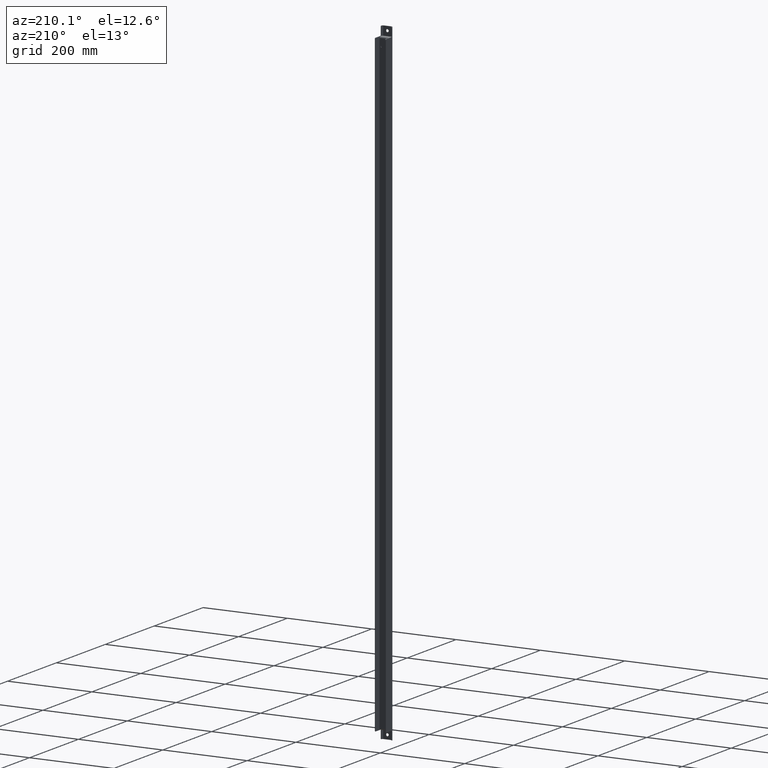
[diagram: clean part render]
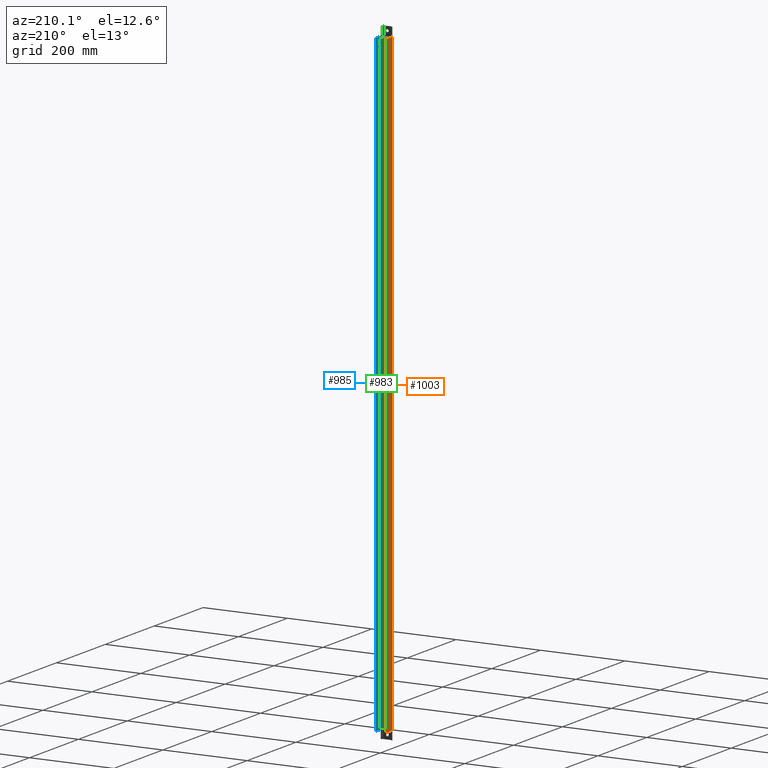
[diagram: same view with three faces highlighted in distinct colors, each labeled with its STEP entity id]
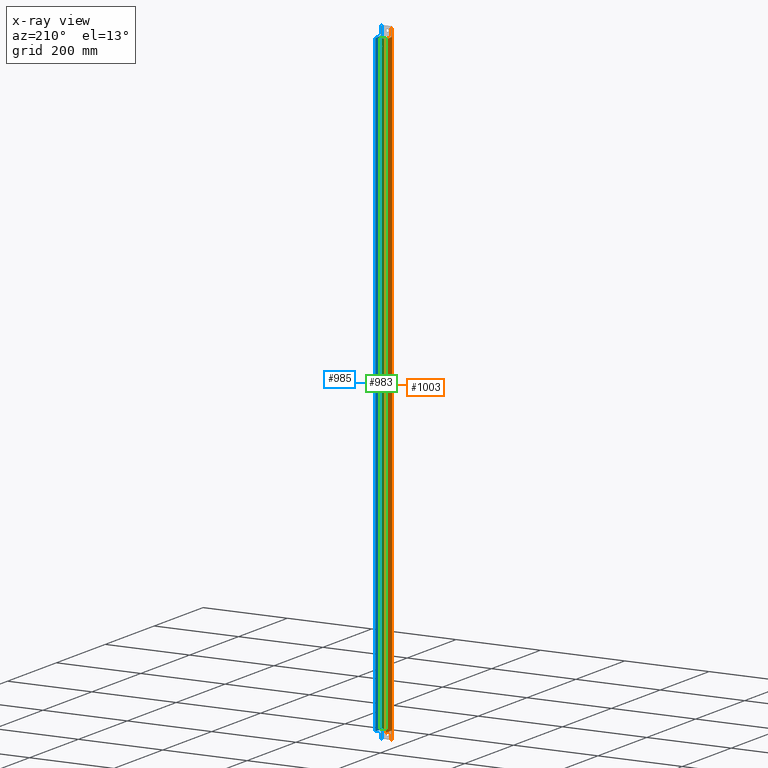
[diagram: x-ray of the same camera — body ghosted, the three highlighted faces saturated]
A machine part, auxiliary view with three faces highlighted in distinct colors.
The next image is the same camera in x-ray (body ghosted, the three faces saturated) — at least one of them is partly hidden behind the body in this view.
Their STEP definitions:

[orange] entity #1003 — the highlighted planar face has unit normal (-1, -0, 0).
#72=LINE('',#1669,#160);
#77=LINE('',#1681,#165);
#78=LINE('',#1683,#166);
#79=LINE('',#1687,#167);
#80=LINE('',#1691,#168);
#81=LINE('',#1695,#169);
#160=VECTOR('',#1350,1000.);
#165=VECTOR('',#1365,1000.);
#166=VECTOR('',#1366,1000.);
#167=VECTOR('',#1369,1000.);
#168=VECTOR('',#1372,1000.);
#169=VECTOR('',#1375,1000.);
#380=ORIENTED_EDGE('',*,*,#613,.F.);
#381=ORIENTED_EDGE('',*,*,#611,.T.);
#382=ORIENTED_EDGE('',*,*,#606,.T.);
#383=ORIENTED_EDGE('',*,*,#608,.T.);
#384=ORIENTED_EDGE('',*,*,#614,.F.);
#385=ORIENTED_EDGE('',*,*,#615,.T.);
#386=ORIENTED_EDGE('',*,*,#616,.F.);
#387=ORIENTED_EDGE('',*,*,#617,.T.);
#388=ORIENTED_EDGE('',*,*,#618,.F.);
#389=ORIENTED_EDGE('',*,*,#619,.T.);
#390=ORIENTED_EDGE('',*,*,#620,.F.);
#391=ORIENTED_EDGE('',*,*,#621,.T.);
#606=EDGE_CURVE('',#728,#729,#72,.F.);
#608=EDGE_CURVE('',#729,#730,#794,.T.);
#611=EDGE_CURVE('',#731,#728,#795,.T.);
#613=EDGE_CURVE('',#731,#732,#77,.T.);
#614=EDGE_CURVE('',#733,#730,#78,.T.);
#615=EDGE_CURVE('',#733,#734,#796,.T.);
#616=EDGE_CURVE('',#735,#734,#79,.T.);
#617=EDGE_CURVE('',#735,#736,#797,.T.);
#618=EDGE_CURVE('',#737,#736,#80,.T.);
#619=EDGE_CURVE('',#737,#738,#798,.T.);
#620=EDGE_CURVE('',#739,#738,#81,.T.);
#621=EDGE_CURVE('',#739,#732,#799,.T.);
#728=VERTEX_POINT('',#1666);
#729=VERTEX_POINT('',#1668);
#730=VERTEX_POINT('',#1672);
#731=VERTEX_POINT('',#1678);
#732=VERTEX_POINT('',#1682);
#733=VERTEX_POINT('',#1684);
#734=VERTEX_POINT('',#1686);
#735=VERTEX_POINT('',#1688);
#736=VERTEX_POINT('',#1690);
#737=VERTEX_POINT('',#1692);
#738=VERTEX_POINT('',#1694);
#739=VERTEX_POINT('',#1696);
#794=CIRCLE('',#1114,2.);
#795=CIRCLE('',#1116,2.);
#796=CIRCLE('',#1118,2.);
#797=CIRCLE('',#1119,2.);
#798=CIRCLE('',#1120,2.);
#799=CIRCLE('',#1121,2.);
#849=EDGE_LOOP('',(#380,#381,#382,#383,#384,#385,#386,#387,#388,#389,#390,
#391));
#917=FACE_BOUND('',#849,.T.);
#959=PLANE('',#1117);
#1003=ADVANCED_FACE('',(#917),#959,.T.);
#1114=AXIS2_PLACEMENT_3D('',#1673,#1354,#1355);
#1116=AXIS2_PLACEMENT_3D('',#1677,#1360,#1361);
#1117=AXIS2_PLACEMENT_3D('',#1680,#1363,#1364);
#1118=AXIS2_PLACEMENT_3D('',#1685,#1367,#1368);
#1119=AXIS2_PLACEMENT_3D('',#1689,#1370,#1371);
#1120=AXIS2_PLACEMENT_3D('',#1693,#1373,#1374);
#1121=AXIS2_PLACEMENT_3D('',#1697,#1376,#1377);
#1350=DIRECTION('',(-3.32185076179637E-17,1.66533453693773E-16,-1.));
#1354=DIRECTION('',(-1.,-3.10099449920508E-15,3.32185076179632E-17));
#1355=DIRECTION('',(3.06328311929254E-15,-1.,-1.66533453693773E-16));
#1360=DIRECTION('',(-1.,-3.10099449920508E-15,3.32185076179632E-17));
#1361=DIRECTION('',(3.06328311929254E-15,-1.,-1.66533453693773E-16));
#1363=DIRECTION('',(-1.,-3.10099449920508E-15,3.32185076179632E-17));
#1364=DIRECTION('',(3.10099449920508E-15,-1.,-1.66533453693773E-16));
#1365=DIRECTION('',(-8.93686180177302E-17,-1.66533453693773E-16,1.));
#1366=DIRECTION('',(-8.93686180177302E-17,-4.2624633981144E-17,1.));
#1367=DIRECTION('',(1.,3.10099449920508E-15,-3.32185076179632E-17));
#1368=DIRECTION('',(3.06328311929254E-15,-1.,-1.66533453693773E-16));
#1369=DIRECTION('',(-4.06163832661068E-16,-1.,-1.66533453693773E-16));
#1370=DIRECTION('',(-1.,-3.10099449920508E-15,3.32185076179632E-17));
#1371=DIRECTION('',(3.06328311929254E-15,-1.,-1.66533453693773E-16));
#1372=DIRECTION('',(3.32185076179638E-17,-1.66533453693773E-16,1.));
#1373=DIRECTION('',(-1.,-3.10099449920508E-15,3.32185076179632E-17));
#1374=DIRECTION('',(3.06328311929254E-15,-1.,-1.66533453693773E-16));
#1375=DIRECTION('',(4.06163832661068E-16,1.,1.66533453693773E-16));
#1376=DIRECTION('',(1.,3.10099449920508E-15,-3.32185076179632E-17));
#1377=DIRECTION('',(3.06328311929254E-15,-1.,-1.66533453693773E-16));
#1666=CARTESIAN_POINT('',(-12.9999999999999,-25.9999999999999,-750.));
#1668=CARTESIAN_POINT('',(-12.9999999999999,-26.0000000000003,750.));
#1669=CARTESIAN_POINT('',(-12.9999999999999,-26.0000000000003,-2.62127271868567E-15));
#1672=CARTESIAN_POINT('',(-12.9999999999999,-24.0000000000002,748.));
#1673=CARTESIAN_POINT('',(-12.9999999999999,-26.0000000000002,748.));
#1677=CARTESIAN_POINT('',(-12.9999999999999,-25.9999999999996,-748.));
#1678=CARTESIAN_POINT('',(-12.9999999999998,-23.9999999999997,-748.));
#1680=CARTESIAN_POINT('',(-12.9999999999999,-28.5000000000003,-3.48838361151601E-15));
#1681=CARTESIAN_POINT('',(-12.9999999999999,-24.0000000000002,-250.));
#1682=CARTESIAN_POINT('',(-12.9999999999999,-24.0000000000001,-731.));
#1683=CARTESIAN_POINT('',(-13.,-24.0000000000003,875.));
#1684=CARTESIAN_POINT('',(-12.9999999999999,-24.0000000000002,731.));
#1685=CARTESIAN_POINT('',(-12.9999999999999,-22.0000000000002,731.));
#1686=CARTESIAN_POINT('',(-12.9999999999999,-22.0000000000002,729.));
#1687=CARTESIAN_POINT('',(-12.9999999999999,-5.50000000000024,729.));
#1688=CARTESIAN_POINT('',(-13.0000000000001,-2.00000000000035,729.));
#1689=CARTESIAN_POINT('',(-13.0000000000001,-2.00000000000035,727.));
#1690=CARTESIAN_POINT('',(-13.0000000000001,-4.5413672822292E-13,727.));
#1691=CARTESIAN_POINT('',(-13.0000000000002,-3.95516952522712E-13,375.));
#1692=CARTESIAN_POINT('',(-13.0000000000001,2.37657116208823E-13,-727.));
#1693=CARTESIAN_POINT('',(-13.0000000000001,-1.99999999999976,-727.));
#1694=CARTESIAN_POINT('',(-12.9999999999998,-1.99999999999973,-729.));
#1695=CARTESIAN_POINT('',(-12.9999999999998,-5.49999999999965,-729.));
#1696=CARTESIAN_POINT('',(-12.9999999999998,-21.9999999999997,-729.));
#1697=CARTESIAN_POINT('',(-12.9999999999999,-21.9999999999997,-731.));

[blue] entity #985 — the highlighted planar face has unit normal (1, -0, 0).
#40=LINE('',#1554,#128);
#45=LINE('',#1569,#133);
#46=LINE('',#1574,#134);
#57=LINE('',#1613,#145);
#58=LINE('',#1617,#146);
#59=LINE('',#1621,#147);
#60=LINE('',#1625,#148);
#61=LINE('',#1629,#149);
#62=LINE('',#1633,#150);
#63=LINE('',#1637,#151);
#128=VECTOR('',#1228,1000.);
#133=VECTOR('',#1239,1000.);
#134=VECTOR('',#1246,1000.);
#145=VECTOR('',#1281,1000.);
#146=VECTOR('',#1284,1000.);
#147=VECTOR('',#1287,1000.);
#148=VECTOR('',#1290,1000.);
#149=VECTOR('',#1293,1000.);
#150=VECTOR('',#1296,1000.);
#151=VECTOR('',#1299,1000.);
#298=ORIENTED_EDGE('',*,*,#555,.F.);
#299=ORIENTED_EDGE('',*,*,#577,.T.);
#300=ORIENTED_EDGE('',*,*,#558,.F.);
#301=ORIENTED_EDGE('',*,*,#578,.T.);
#302=ORIENTED_EDGE('',*,*,#548,.F.);
#303=ORIENTED_EDGE('',*,*,#579,.F.);
#304=ORIENTED_EDGE('',*,*,#580,.T.);
#305=ORIENTED_EDGE('',*,*,#581,.T.);
#306=ORIENTED_EDGE('',*,*,#582,.T.);
#307=ORIENTED_EDGE('',*,*,#583,.T.);
#308=ORIENTED_EDGE('',*,*,#584,.T.);
#309=ORIENTED_EDGE('',*,*,#585,.T.);
#310=ORIENTED_EDGE('',*,*,#586,.T.);
#311=ORIENTED_EDGE('',*,*,#587,.T.);
#312=ORIENTED_EDGE('',*,*,#588,.T.);
#313=ORIENTED_EDGE('',*,*,#589,.T.);
#314=ORIENTED_EDGE('',*,*,#590,.T.);
#315=ORIENTED_EDGE('',*,*,#591,.F.);
#548=EDGE_CURVE('',#692,#693,#40,.T.);
#555=EDGE_CURVE('',#698,#699,#45,.T.);
#558=EDGE_CURVE('',#700,#701,#46,.T.);
#577=EDGE_CURVE('',#698,#701,#780,.T.);
#578=EDGE_CURVE('',#700,#693,#781,.T.);
#579=EDGE_CURVE('',#716,#692,#57,.T.);
#580=EDGE_CURVE('',#716,#717,#782,.T.);
#581=EDGE_CURVE('',#717,#718,#58,.T.);
#582=EDGE_CURVE('',#718,#719,#783,.T.);
#583=EDGE_CURVE('',#719,#720,#59,.T.);
#584=EDGE_CURVE('',#720,#721,#784,.T.);
#585=EDGE_CURVE('',#721,#722,#60,.T.);
#586=EDGE_CURVE('',#722,#723,#785,.T.);
#587=EDGE_CURVE('',#723,#724,#61,.T.);
#588=EDGE_CURVE('',#724,#725,#786,.T.);
#589=EDGE_CURVE('',#725,#726,#62,.T.);
#590=EDGE_CURVE('',#726,#727,#787,.T.);
#591=EDGE_CURVE('',#699,#727,#63,.T.);
#692=VERTEX_POINT('',#1555);
#693=VERTEX_POINT('',#1556);
#698=VERTEX_POINT('',#1568);
#699=VERTEX_POINT('',#1570);
#700=VERTEX_POINT('',#1575);
#701=VERTEX_POINT('',#1576);
#716=VERTEX_POINT('',#1614);
#717=VERTEX_POINT('',#1616);
#718=VERTEX_POINT('',#1618);
#719=VERTEX_POINT('',#1620);
#720=VERTEX_POINT('',#1622);
#721=VERTEX_POINT('',#1624);
#722=VERTEX_POINT('',#1626);
#723=VERTEX_POINT('',#1628);
#724=VERTEX_POINT('',#1630);
#725=VERTEX_POINT('',#1632);
#726=VERTEX_POINT('',#1634);
#727=VERTEX_POINT('',#1636);
#780=CIRCLE('',#1084,3.);
#781=CIRCLE('',#1085,3.);
#782=CIRCLE('',#1086,2.);
#783=CIRCLE('',#1087,2.);
#784=CIRCLE('',#1088,2.);
#785=CIRCLE('',#1089,2.);
#786=CIRCLE('',#1090,2.);
#787=CIRCLE('',#1091,2.);
#829=EDGE_LOOP('',(#298,#299,#300,#301,#302,#303,#304,#305,#306,#307,#308,
#309,#310,#311,#312,#313,#314,#315));
#897=FACE_BOUND('',#829,.T.);
#954=PLANE('',#1083);
#985=ADVANCED_FACE('',(#897),#954,.F.);
#1083=AXIS2_PLACEMENT_3D('',#1610,#1275,#1276);
#1084=AXIS2_PLACEMENT_3D('',#1611,#1277,#1278);
#1085=AXIS2_PLACEMENT_3D('',#1612,#1279,#1280);
#1086=AXIS2_PLACEMENT_3D('',#1615,#1282,#1283);
#1087=AXIS2_PLACEMENT_3D('',#1619,#1285,#1286);
#1088=AXIS2_PLACEMENT_3D('',#1623,#1288,#1289);
#1089=AXIS2_PLACEMENT_3D('',#1627,#1291,#1292);
#1090=AXIS2_PLACEMENT_3D('',#1631,#1294,#1295);
#1091=AXIS2_PLACEMENT_3D('',#1635,#1297,#1298);
#1228=DIRECTION('',(4.06163832661068E-16,1.,-8.6117241928882E-15));
#1239=DIRECTION('',(-5.71375592277907E-16,-1.,-1.96182842258948E-15));
#1246=DIRECTION('',(-1.21257418434899E-16,-3.32494788514936E-15,-1.));
#1275=DIRECTION('',(1.,-4.06163832661068E-16,8.93686180177302E-17));
#1276=DIRECTION('',(8.93686180177302E-17,1.66533453693773E-16,-1.));
#1277=DIRECTION('',(1.,-4.06163832661068E-16,8.93686180177302E-17));
#1278=DIRECTION('',(4.06163832661068E-16,1.,0.));
#1279=DIRECTION('',(1.,-4.06163832661068E-16,8.93686180177302E-17));
#1280=DIRECTION('',(4.06163832661068E-16,1.,0.));
#1281=DIRECTION('',(8.93686180177302E-17,1.31838984174237E-16,-1.));
#1282=DIRECTION('',(-1.,4.06163832661068E-16,-8.93686180177302E-17));
#1283=DIRECTION('',(8.93686180177302E-17,1.66533453693773E-16,-1.));
#1284=DIRECTION('',(8.93686180177302E-17,4.2624633981144E-17,-1.));
#1285=DIRECTION('',(1.,-4.06163832661068E-16,8.93686180177302E-17));
#1286=DIRECTION('',(8.93686180177302E-17,1.66533453693773E-16,-1.));
#1287=DIRECTION('',(4.06163832661068E-16,1.,1.66533453693773E-16));
#1288=DIRECTION('',(-1.,4.06163832661068E-16,-8.93686180177302E-17));
#1289=DIRECTION('',(8.93686180177302E-17,1.66533453693773E-16,-1.));
#1290=DIRECTION('',(8.93686180177302E-17,1.66533453693773E-16,-1.));
#1291=DIRECTION('',(-1.,4.06163832661068E-16,-8.93686180177302E-17));
#1292=DIRECTION('',(8.93686180177302E-17,1.66533453693773E-16,-1.));
#1293=DIRECTION('',(-4.06163832661068E-16,-1.,-1.66533453693773E-16));
#1294=DIRECTION('',(1.,-4.06163832661068E-16,8.93686180177302E-17));
#1295=DIRECTION('',(8.93686180177302E-17,1.66533453693773E-16,-1.));
#1296=DIRECTION('',(8.93686180177302E-17,1.66533453693773E-16,-1.));
#1297=DIRECTION('',(-1.,4.06163832661068E-16,-8.93686180177302E-17));
#1298=DIRECTION('',(8.93686180177551E-17,6.15323764163733E-14,-1.));
#1299=DIRECTION('',(8.93686180177302E-17,1.31838984174237E-16,-1.));
#1554=CARTESIAN_POINT('',(11.5,-16.4999999999967,728.5));
#1555=CARTESIAN_POINT('',(11.5,-26.0000000000002,728.5));
#1556=CARTESIAN_POINT('',(11.5,-19.4999999999985,728.5));
#1568=CARTESIAN_POINT('',(11.5,-19.4999999999987,-728.5));
#1569=CARTESIAN_POINT('',(11.5,-16.4999999999956,-728.5));
#1570=CARTESIAN_POINT('',(11.5,-25.9999999999997,-728.5));
#1574=CARTESIAN_POINT('',(11.5,-16.4999999999977,350.5));
#1575=CARTESIAN_POINT('',(11.5,-16.4999999999986,725.5));
#1576=CARTESIAN_POINT('',(11.5,-16.4999999999987,-725.5));
#1610=CARTESIAN_POINT('',(11.5,-28.5000000000002,-2.75106686463224E-15));
#1611=CARTESIAN_POINT('',(11.5,-19.4999999999987,-725.5));
#1612=CARTESIAN_POINT('',(11.5,-19.4999999999986,725.5));
#1613=CARTESIAN_POINT('',(11.5,-26.0000000000003,1000.));
#1614=CARTESIAN_POINT('',(11.5,-26.0000000000002,750.));
#1615=CARTESIAN_POINT('',(11.5,-26.0000000000002,748.));
#1616=CARTESIAN_POINT('',(11.5,-24.0000000000002,748.));
#1617=CARTESIAN_POINT('',(11.5,-24.0000000000002,500.));
#1618=CARTESIAN_POINT('',(11.5,-24.0000000000002,731.));
#1619=CARTESIAN_POINT('',(11.5,-22.0000000000002,731.));
#1620=CARTESIAN_POINT('',(11.5,-22.0000000000002,729.));
#1621=CARTESIAN_POINT('',(11.5,-28.5000000000002,729.));
#1622=CARTESIAN_POINT('',(11.5,-2.00000000000032,729.));
#1623=CARTESIAN_POINT('',(11.4999999999998,-2.00000000000032,727.));
#1624=CARTESIAN_POINT('',(11.4999999999998,-3.22658566531686E-13,727.));
#1625=CARTESIAN_POINT('',(11.4999999999998,-3.05311331771918E-13,1.07920257032452E-15));
#1626=CARTESIAN_POINT('',(11.4999999999999,-1.84241510936545E-13,-727.));
#1627=CARTESIAN_POINT('',(11.4999999999999,-1.99999999999973,-727.));
#1628=CARTESIAN_POINT('',(11.4999999999999,-1.99999999999973,-729.));
#1629=CARTESIAN_POINT('',(11.5000000000001,-28.4999999999996,-729.));
#1630=CARTESIAN_POINT('',(11.5000000000001,-21.9999999999996,-729.));
#1631=CARTESIAN_POINT('',(11.5000000000001,-21.9999999999996,-731.));
#1632=CARTESIAN_POINT('',(11.5000000000001,-24.0000000000001,-731.));
#1633=CARTESIAN_POINT('',(11.5,-24.0000000000002,125.));
#1634=CARTESIAN_POINT('',(11.5000000000001,-23.9999999999996,-748.));
#1635=CARTESIAN_POINT('',(11.5000000000001,-25.9999999999996,-748.));
#1636=CARTESIAN_POINT('',(11.5000000000001,-25.9999999999999,-750.));
#1637=CARTESIAN_POINT('',(11.5,-26.0000000000003,375.));

[green] entity #983 — the highlighted planar face has unit normal (0, 1, -0).
#46=LINE('',#1574,#134);
#47=LINE('',#1577,#135);
#48=LINE('',#1579,#136);
#49=LINE('',#1581,#137);
#134=VECTOR('',#1246,1000.);
#135=VECTOR('',#1247,1000.);
#136=VECTOR('',#1248,1000.);
#137=VECTOR('',#1249,1000.);
#274=ORIENTED_EDGE('',*,*,#513,.F.);
#275=ORIENTED_EDGE('',*,*,#515,.F.);
#276=ORIENTED_EDGE('',*,*,#558,.T.);
#277=ORIENTED_EDGE('',*,*,#559,.T.);
#278=ORIENTED_EDGE('',*,*,#560,.T.);
#279=ORIENTED_EDGE('',*,*,#561,.T.);
#513=EDGE_CURVE('',#657,#657,#753,.T.);
#515=EDGE_CURVE('',#659,#659,#755,.T.);
#558=EDGE_CURVE('',#700,#701,#46,.T.);
#559=EDGE_CURVE('',#701,#702,#47,.T.);
#560=EDGE_CURVE('',#702,#703,#48,.T.);
#561=EDGE_CURVE('',#703,#700,#49,.T.);
#657=VERTEX_POINT('',#1478);
#659=VERTEX_POINT('',#1484);
#700=VERTEX_POINT('',#1575);
#701=VERTEX_POINT('',#1576);
#702=VERTEX_POINT('',#1578);
#703=VERTEX_POINT('',#1580);
#753=CIRCLE('',#1046,2.);
#755=CIRCLE('',#1050,2.);
#825=EDGE_LOOP('',(#274));
#826=EDGE_LOOP('',(#275));
#827=EDGE_LOOP('',(#276,#277,#278,#279));
#893=FACE_BOUND('',#825,.T.);
#894=FACE_BOUND('',#826,.T.);
#895=FACE_BOUND('',#827,.T.);
#952=PLANE('',#1073);
#983=ADVANCED_FACE('',(#893,#894,#895),#952,.T.);
#1046=AXIS2_PLACEMENT_3D('',#1477,#1164,#1165);
#1050=AXIS2_PLACEMENT_3D('',#1483,#1172,#1173);
#1073=AXIS2_PLACEMENT_3D('',#1573,#1244,#1245);
#1164=DIRECTION('',(4.06163832661068E-16,1.,-3.32698173895069E-15));
#1165=DIRECTION('',(9.21833731195405E-17,-3.32698173895069E-15,-1.));
#1172=DIRECTION('',(4.06163832661068E-16,1.,-3.32698173895069E-15));
#1173=DIRECTION('',(9.21833731195405E-17,-3.32698173895069E-15,-1.));
#1244=DIRECTION('',(4.06163832661068E-16,1.,-3.32494788514936E-15));
#1245=DIRECTION('',(-1.,4.06163832661068E-16,6.76398658185478E-32));
#1246=DIRECTION('',(-1.21257418434899E-16,-3.32494788514936E-15,-1.));
#1247=DIRECTION('',(-1.,4.06163832661068E-16,6.76398658185534E-32));
#1248=DIRECTION('',(1.21257418434899E-16,3.32494788514936E-15,1.));
#1249=DIRECTION('',(1.,-4.06163832661068E-16,-6.76398658185534E-32));
#1477=CARTESIAN_POINT('',(-7.,-16.4999999999986,708.5));
#1478=CARTESIAN_POINT('',(-7.,-16.4999999999986,706.5));
#1483=CARTESIAN_POINT('',(7.,-16.4999999999986,708.5));
#1484=CARTESIAN_POINT('',(7.,-16.4999999999986,706.5));
#1573=CARTESIAN_POINT('',(4.66701312594012E-15,-16.4999999999989,-3.78058567638503E-14));
#1574=CARTESIAN_POINT('',(11.5,-16.4999999999977,350.5));
#1575=CARTESIAN_POINT('',(11.5,-16.4999999999986,725.5));
#1576=CARTESIAN_POINT('',(11.5,-16.4999999999987,-725.5));
#1577=CARTESIAN_POINT('',(-10.,-16.4999999999987,-725.5));
#1578=CARTESIAN_POINT('',(-11.4999999999999,-16.4999999999987,-725.5));
#1579=CARTESIAN_POINT('',(-11.4999999999999,-16.4999999999978,350.5));
#1580=CARTESIAN_POINT('',(-11.4999999999998,-16.4999999999965,725.5));
#1581=CARTESIAN_POINT('',(9.99999999999997,-16.4999999999986,725.5));